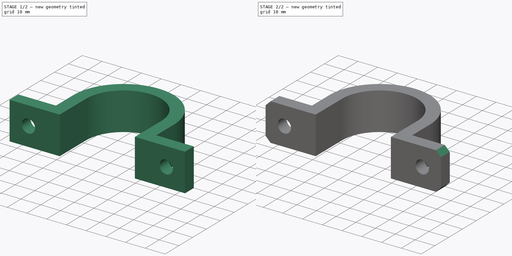
[diagram: build sequence overview — one tinted view per stage of 2, left to right]
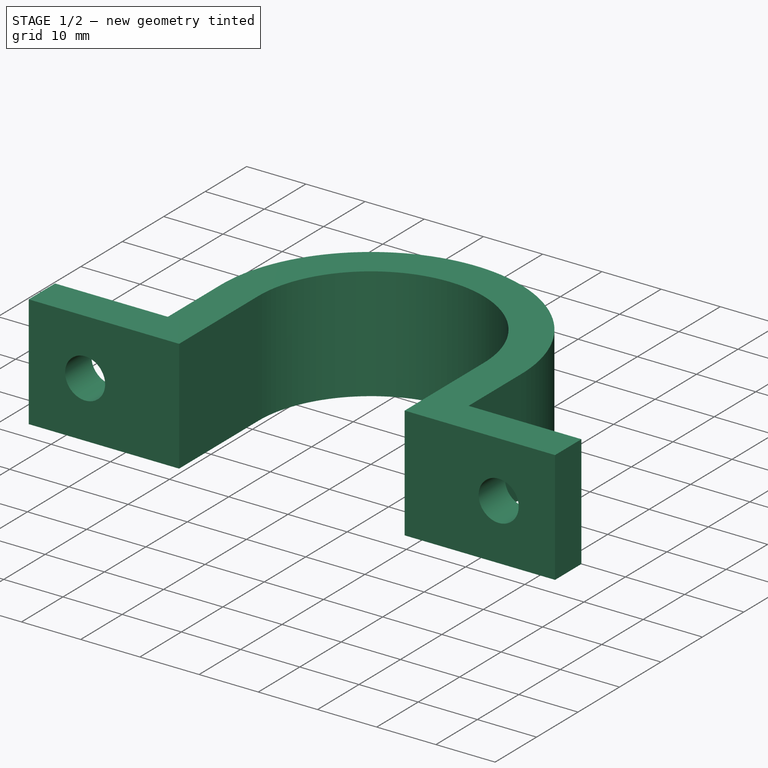
[diagram: stage 1 of 2 — iso view after this stage's code; geometry added in this stage tinted green]
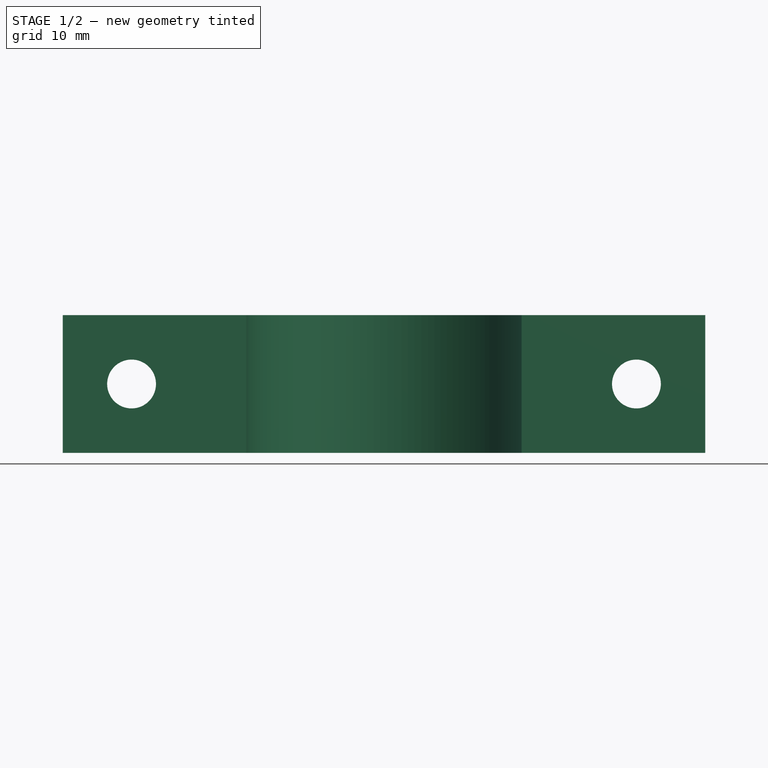
[diagram: stage 1 of 2 — front view after this stage's code; geometry added in this stage tinted green]
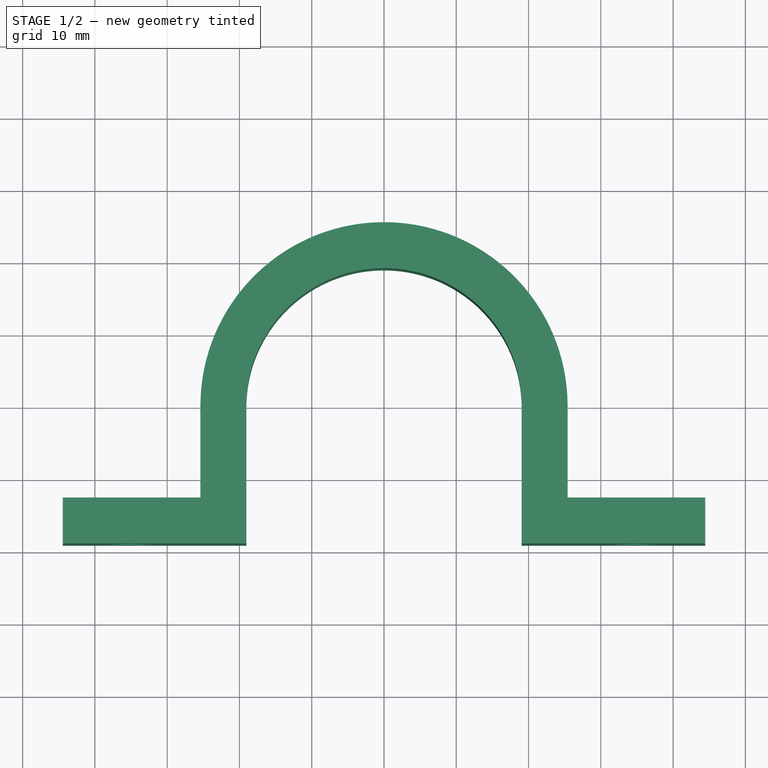
[diagram: stage 1 of 2 — top view after this stage's code; geometry added in this stage tinted green]
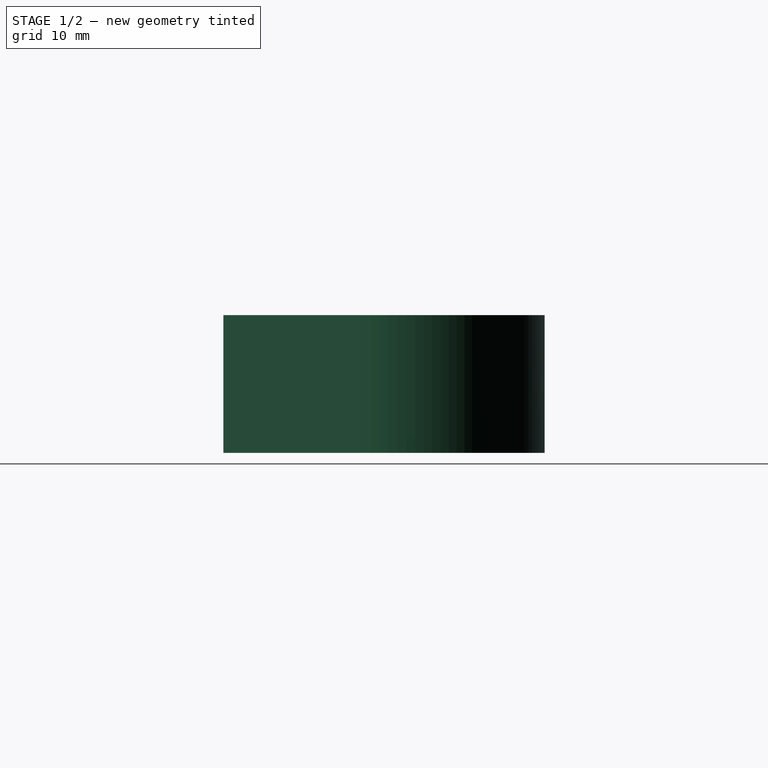
[diagram: stage 1 of 2 — right view after this stage's code; geometry added in this stage tinted green]
FCSTD DOCUMENT  (FreeCAD 0.21R31917 (Git))
Label: board mount
License: All rights reserved
LicenseURL: http://en.wikipedia.org/wiki/All_rights_reserved
objects: Sketcher::SketchObject×2, PartDesign::Pad×1, PartDesign::Hole×1, PartDesign::Chamfer×1, PartDesign::Body×1
note: 9 computed .brp shape members not serialized (recipe doc carries the construction recipe); baked Part::Feature solids carry a one-line shape summary decoded from their .brp

FEATURE [Sketcher::SketchObject] Sketch
  FullyConstrained = false
  MapMode = 5
  Support = -> [XY_Plane]
  sketch-geometry (19):
    g0: Circle CenterX=0 CenterY=0 CenterZ=0 NormalX=0 NormalY=0 NormalZ=1 AngleXU=0 Radius=19.05
    g1: LineSegment StartX=-5.84924e-05 StartY=-19.05 StartZ=0 EndX=48.6314 EndY=-19.05 EndZ=0
    g2: LineSegment StartX=-5.84924e-05 StartY=-19.05 StartZ=0 EndX=-48.6315 EndY=-19.05 EndZ=0
    g3: ArcOfCircle CenterX=0 CenterY=0 CenterZ=0 NormalX=0 NormalY=0 NormalZ=1 AngleXU=0 Radius=19.05 StartAngle=0 EndAngle=3.14159
    g4: LineSegment StartX=-19.05 StartY=2.3e-15 StartZ=0 EndX=-19.05 EndY=-19.05 EndZ=0
    g5: LineSegment StartX=19.05 StartY=0 StartZ=0 EndX=19.05 EndY=-19.05 EndZ=0
    g6: LineSegment StartX=-19.05 StartY=-19.05 StartZ=0 EndX=-25.4 EndY=-19.05 EndZ=0
    g7: ArcOfCircle CenterX=0 CenterY=0 CenterZ=0 NormalX=0 NormalY=0 NormalZ=1 AngleXU=0 Radius=25.4 StartAngle=0 EndAngle=3.14159
    g8: LineSegment StartX=25.4 StartY=0 StartZ=0 EndX=25.4 EndY=-19.05 EndZ=0
    g9: LineSegment StartX=19.05 StartY=-19.05 StartZ=0 EndX=25.4 EndY=-19.05 EndZ=0
    g10: LineSegment StartX=-25.4 StartY=-19.05 StartZ=0 EndX=-25.4 EndY=0 EndZ=0
    g11: LineSegment StartX=-25.4 StartY=-12.7 StartZ=0 EndX=-44.45 EndY=-12.7 EndZ=0
    g12: LineSegment StartX=-44.45 StartY=-12.7 StartZ=0 EndX=-44.45 EndY=-19.05 EndZ=0
    g13: LineSegment StartX=-44.45 StartY=-19.05 StartZ=0 EndX=-25.4 EndY=-19.05 EndZ=0
    g14: LineSegment StartX=-25.4 StartY=-12.7 StartZ=0 EndX=-25.4 EndY=0 EndZ=0
    g15: LineSegment StartX=25.4 StartY=0 StartZ=0 EndX=25.4 EndY=-12.7 EndZ=0
    g16: LineSegment StartX=25.4 StartY=-12.7 StartZ=0 EndX=44.45 EndY=-12.7 EndZ=0
    g17: LineSegment StartX=44.45 StartY=-12.7 StartZ=0 EndX=44.45 EndY=-19.05 EndZ=0
    g18: LineSegment StartX=44.45 StartY=-19.05 StartZ=0 EndX=25.4 EndY=-19.05 EndZ=0
  constraints (53):
    c: Coincident(g0,g-1)
    c: Diameter(g0) = 38.1  'RailDia'
    c: PointOnObject(g1,g0)
    c: Horizontal(g1)
    c: Coincident(g2,g1)
    c: Horizontal(g2)
    c: Tangent(g2,g0)
    c: Equal(g1,g2)
    c: Coincident(g3,g0)
    c: PointOnObject(g3,g-1)
    c: PointOnObject(g3,g-1)
    c: Equal(g3,g0)
    c: Coincident(g4,g3)
    c: Vertical(g4)
    c: Coincident(g5,g3)
    c: PointOnObject(g5,g1)
    c: Vertical(g5)
    c: PointOnObject(g4,g2)
    c: Coincident(g6,g4)
    c: PointOnObject(g6,g2)
    c: Coincident(g7,g3)
    c: PointOnObject(g7,g-1)
    c: PointOnObject(g7,g-1)
    c: Coincident(g8,g7)
    c: PointOnObject(g8,g1)
    c: Vertical(g8)
    c: Coincident(g9,g5)
    c: Coincident(g9,g8)
    c: Coincident(g10,g6)
    c: Coincident(g10,g7)
    c: Vertical(g10)
    c: DistanceX(g6,g4) = 6.35  'OffsetLen'
    c: PointOnObject(g11,g10)
    c: Horizontal(g11)
    c: Coincident(g12,g11)
    c: PointOnObject(g12,g2)
    c: Vertical(g12)
    c: Coincident(g13,g12)
    c: Coincident(g13,g6)
    c: Coincident(g14,g11)
    c: Coincident(g14,g7)
    c: Tangent(g7,g15) = 1.5708
    c: Coincident(g15,g16)
    c: Horizontal(g16)
    c: Coincident(g16,g17)
    c: PointOnObject(g17,g1)
    c: Vertical(g17)
    c: Coincident(g17,g18)
    c: Coincident(g18,g9)
    c: Equal(g16,g11)
    c: Equal(g17,g12)
    c: DistanceX(g12,g6) = 19.05  'EarLen'
    c: Equal(g12,g6)
FEATURE [PartDesign::Pad] Pad
  Direction = (0,0,1)
  Length = 19.05
  Length2 = 10
  Profile = -> Sketch
  ReferenceAxis = -> Sketch [N_Axis]
  Type = 0
FEATURE [Sketcher::SketchObject] Sketch001
  FullyConstrained = false
  MapMode = 5
  Placement = pos=(0,0,0) rot=(1,0,0;1.5708rad)
  Support = -> [XZ_Plane]
  expr: Constraints[2] = Pad.Length / 2
  expr: Constraints[4] = Sketch.Constraints.RailDia / 2 + Sketch.Constraints.OffsetLen + +Sketch.Constraints.EarLen / 2
  sketch-geometry (3):
    g0: LineSegment StartX=0 StartY=9.525 StartZ=0 EndX=58.5498 EndY=9.525 EndZ=0
    g1: Circle CenterX=34.925 CenterY=9.525 CenterZ=0 NormalX=0 NormalY=0 NormalZ=1 AngleXU=0 Radius=4.34419
    g2: Circle CenterX=-34.925 CenterY=9.525 CenterZ=0 NormalX=0 NormalY=0 NormalZ=1 AngleXU=0 Radius=10.7148
  constraints (6):
    c: PointOnObject(g0,g-2)
    c: Horizontal(g0)
    c: DistanceY(g-1,g0) = 9.525
    c: PointOnObject(g1,g0)
    c: DistanceX(g0,g1) = 34.925
    c: Symmetric(g2,g1,g-2)
FEATURE [PartDesign::Hole] Hole
  BaseFeature = -> Pad
  CustomThreadClearance = 0
  Depth = 24.9936
  DepthType = 0
  Diameter = 6.7564
  DrillForDepth = false
  DrillPoint = 1
  DrillPointAngle = 118
  HoleCutCountersinkAngle = 90
  HoleCutCustomValues = false
  HoleCutDepth = 0
  HoleCutDiameter = 0
  HoleCutType = 0
  ModelThread = false
  Profile = -> Sketch001
  Reversed = true
  Tapered = false
  TaperedAngle = 90
  ThreadClass = 0
  ThreadDepth = 24.9936
  ThreadDepthType = 0
  ThreadDirection = 0
  ThreadFit = 0
  ThreadSize = 0
  ThreadType = 0
  Threaded = false
  UseCustomThreadClearance = false
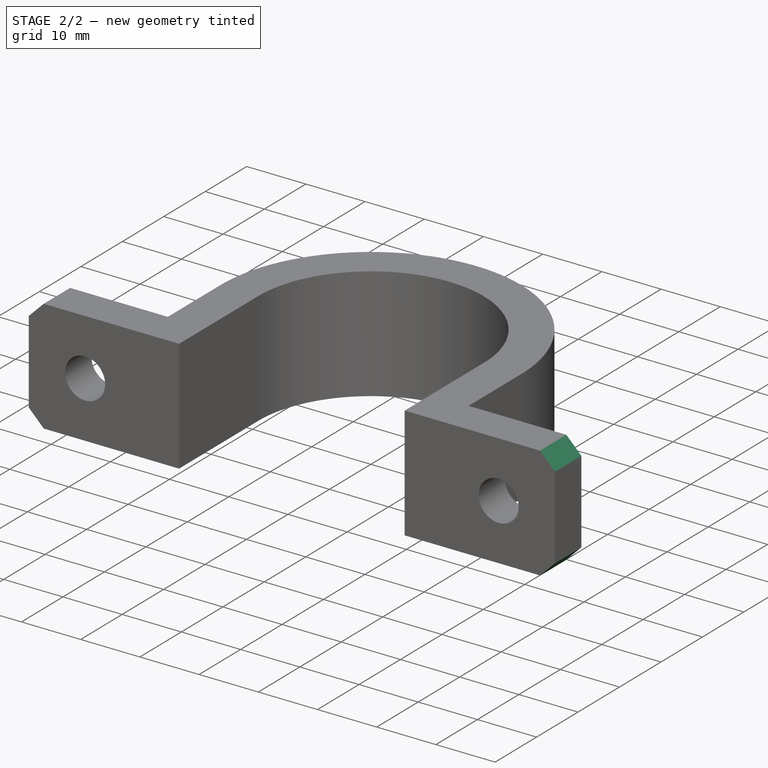
[diagram: stage 2 of 2 — iso view after this stage's code; geometry added in this stage tinted green]
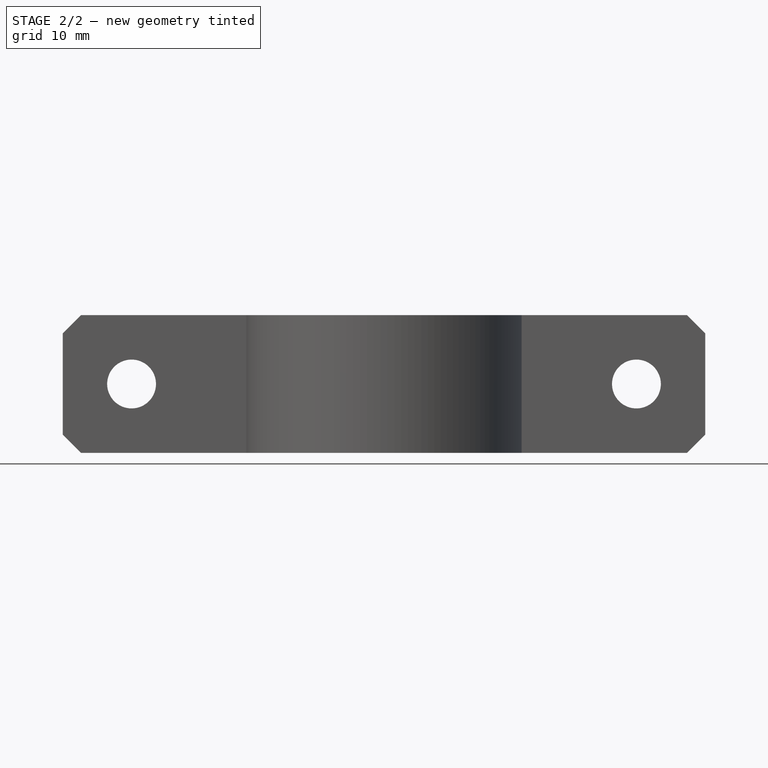
[diagram: stage 2 of 2 — front view after this stage's code; geometry added in this stage tinted green]
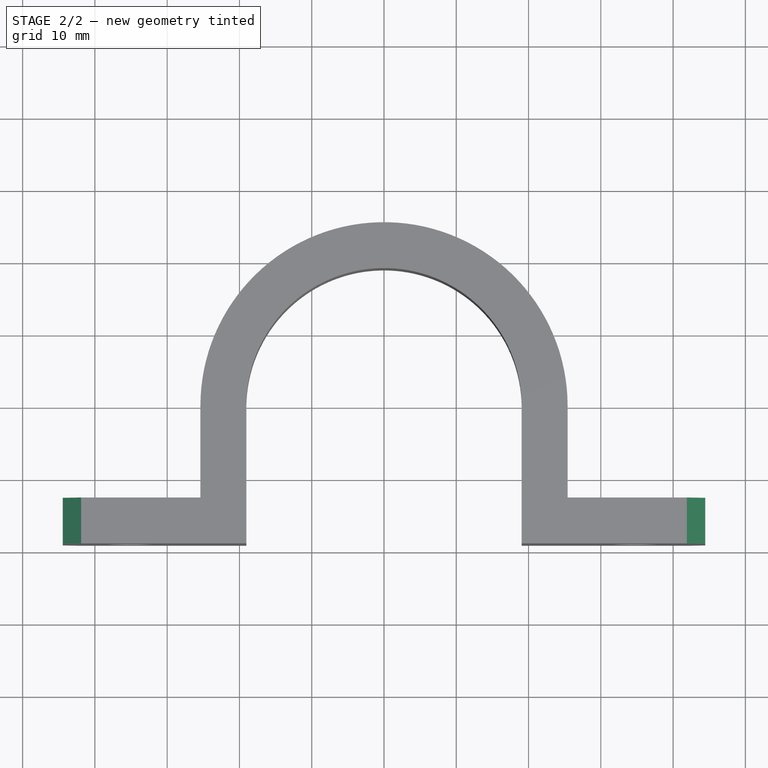
[diagram: stage 2 of 2 — top view after this stage's code; geometry added in this stage tinted green]
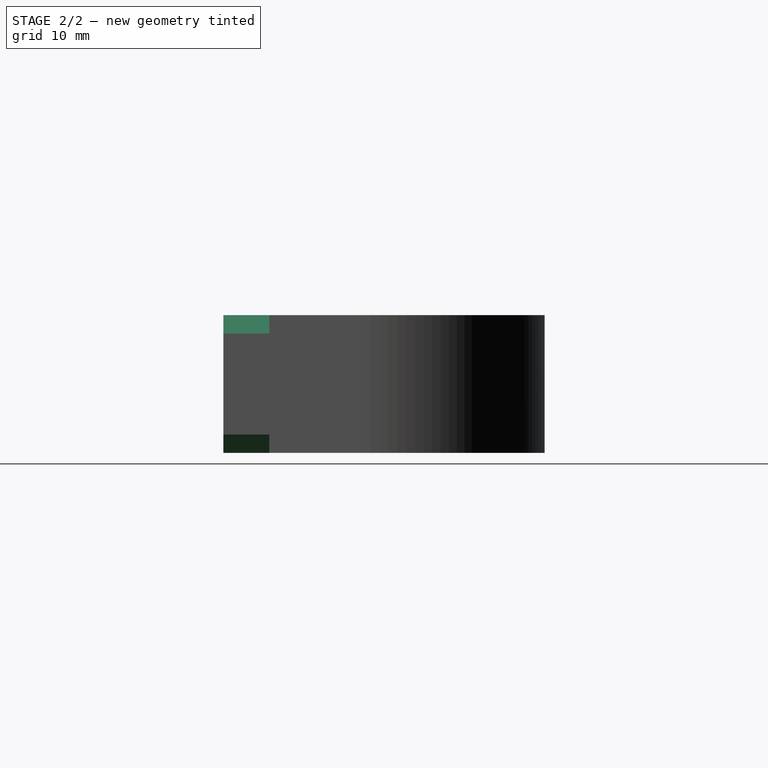
[diagram: stage 2 of 2 — right view after this stage's code; geometry added in this stage tinted green]
FEATURE [PartDesign::Chamfer] Chamfer
  Angle = 45
  Base = -> Hole [Edge31,Edge20,Edge12,Edge23]
  BaseFeature = -> Hole
  ChamferType = 0
  FlipDirection = false
  Size = 2.54
  Size2 = 1
  SupportTransform = false
  UseAllEdges = false
FEATURE [PartDesign::Body] Body
  Group = -> [Sketch,Pad,Sketch001,Hole,Chamfer]
  Origin = -> Origin
  Tip = -> Chamfer
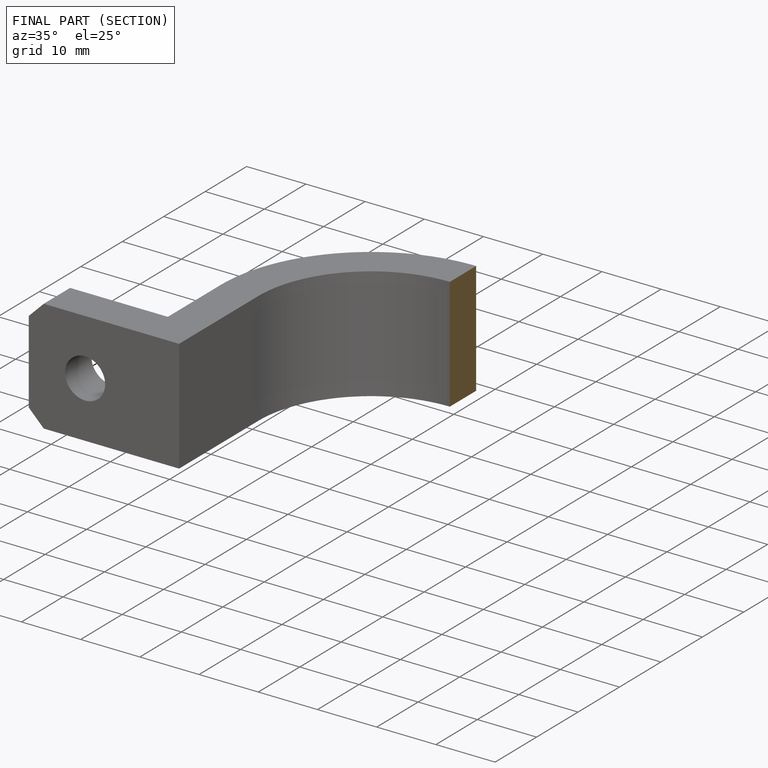
[diagram: finished part — half-section view (interior)]
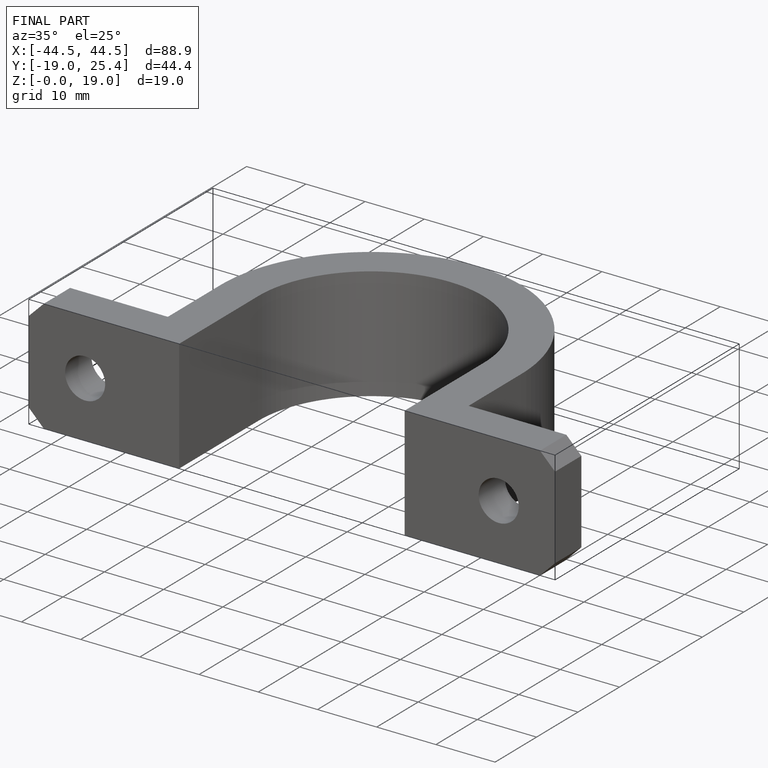
[diagram: finished part — iso view with bounding-box wireframe]
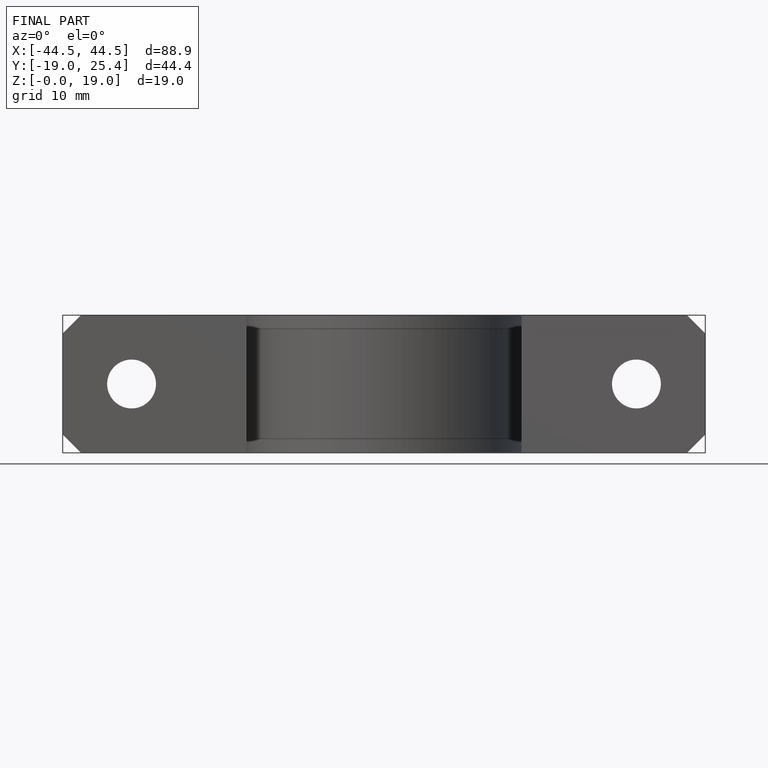
[diagram: finished part — front view with bounding-box wireframe]
